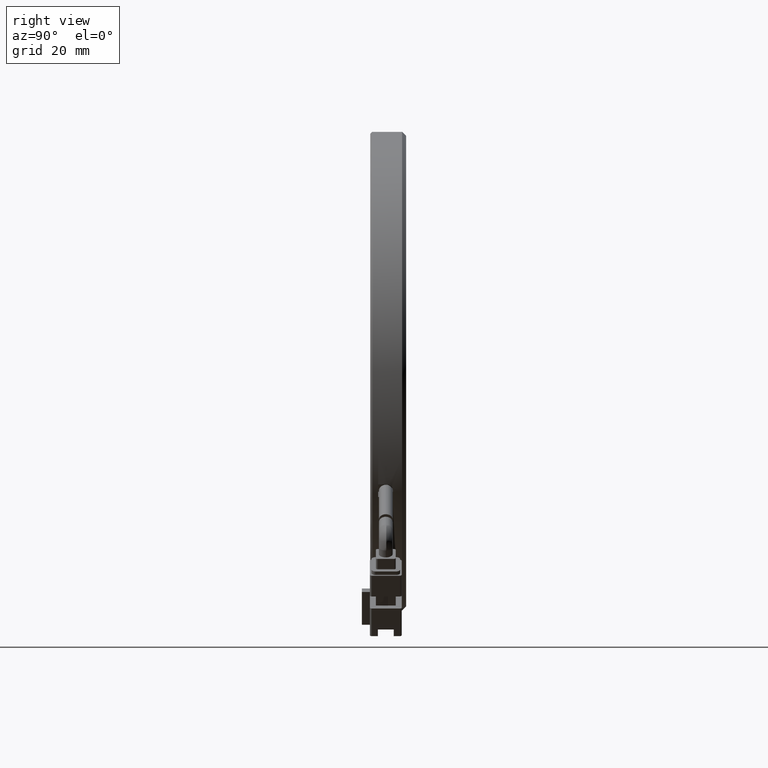
[diagram: clean part render]
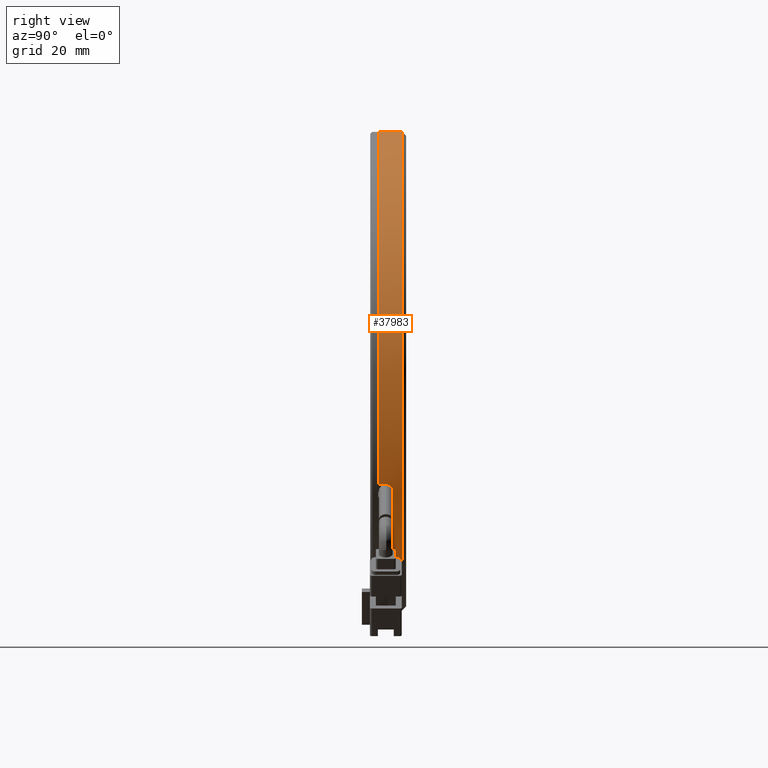
[diagram: same view with one face highlighted and labeled with its STEP entity id]
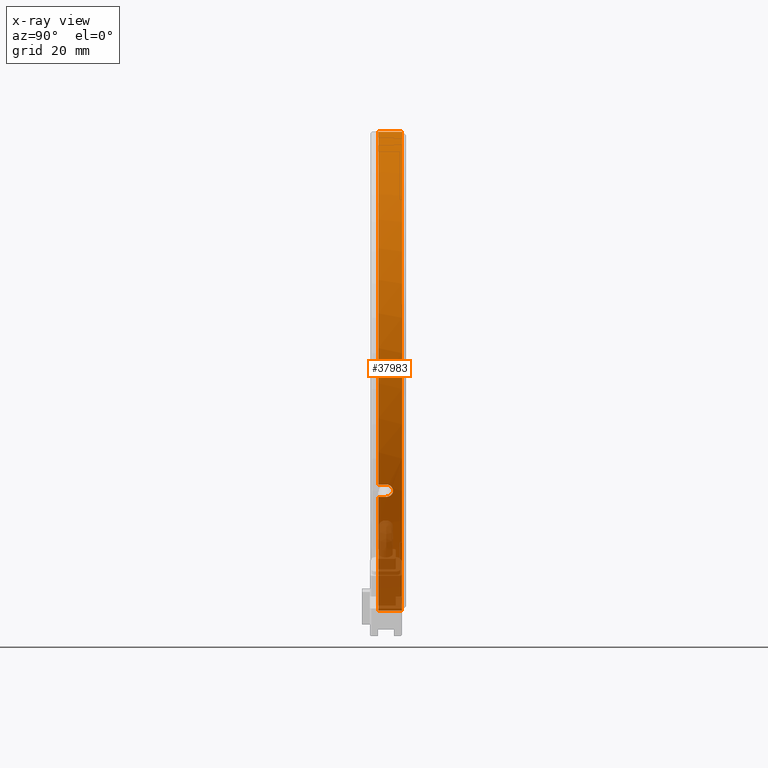
[diagram: x-ray of the same camera — body ghosted, the highlighted face saturated]
A machine part, right view. The second image highlights one B-rep face of the part: STEP entity #37983.
The next image is the same camera in x-ray: the body ghosted, the highlighted face saturated — about 16% of this face is hidden behind the body in this view.
In plain terms, the highlighted cylindrical surface (partial cylindrical patch) has radius 60 mm, axis along (0, 1, -0).
Its self-contained STEP definition (entity closure, byte-faithful):
#72 = CARTESIAN_POINT ( 'NONE',  ( 107.6669906044507000, 23.95880466372662800, -31.26473926482467600 ) ) ;
#163 = CARTESIAN_POINT ( 'NONE',  ( 107.5820754639397700, 23.68334906548545900, -31.40378674532980700 ) ) ;
#218 = CARTESIAN_POINT ( 'NONE',  ( 107.6107933539878000, 23.79366252378922700, -31.35694148969325600 ) ) ;
#296 = CARTESIAN_POINT ( 'NONE',  ( 107.5166247765962700, 23.36610255110186800, -31.51004566347933500 ) ) ;
#965 = CARTESIAN_POINT ( 'NONE',  ( 107.6879046395145400, 24.01376433703568100, -31.23035833033889800 ) ) ;
#1115 = CARTESIAN_POINT ( 'NONE',  ( 107.5003506791527700, 23.17424804708871700, -31.53560558771098600 ) ) ;
#1192 = CARTESIAN_POINT ( 'NONE',  ( 107.4949962863105200, 23.01888387335434800, -31.54436103309216900 ) ) ;
#1261 = ORIENTED_EDGE ( 'NONE', *, *, #3853, .F. ) ;
#1821 = CARTESIAN_POINT ( 'NONE',  ( 109.2943813872259500, 21.01889671361520200, -28.42765123433125800 ) ) ;
#2035 = CARTESIAN_POINT ( 'NONE',  ( 56.45624510954999000, 21.01889671361172800, 60.00000000000000000 ) ) ;
#2414 = VERTEX_POINT ( 'NONE', #11195 ) ;
#3571 = VERTEX_POINT ( 'NONE', #45705 ) ;
#3853 = EDGE_CURVE ( 'NONE', #42153, #21032, #53825, .T. ) ;
#3948 = EDGE_CURVE ( 'NONE', #62863, #42153, #36689, .T. ) ;
#4408 = EDGE_CURVE ( 'NONE', #2414, #3571, #55476, .T. ) ;
#4454 = DIRECTION ( 'NONE',  ( 0.0000000000000000000, 1.000000000000000000, -0.0000000000000000000 ) ) ;
#6270 = CARTESIAN_POINT ( 'NONE',  ( 108.5031715242172700, 24.71889982597300800, -29.85207985124088000 ) ) ;
#6855 = CARTESIAN_POINT ( 'NONE',  ( 108.3323343531352900, 24.71889360071834900, -30.14797695285378200 ) ) ;
#7742 = EDGE_CURVE ( 'NONE', #61824, #23388, #13274, .T. ) ;
#8142 = VECTOR ( 'NONE', #32685, 1000.000000000000000 ) ;
#8259 = ORIENTED_EDGE ( 'NONE', *, *, #7742, .F. ) ;
#11195 = CARTESIAN_POINT ( 'NONE',  ( 107.4949962863105200, 23.01888387335434800, -31.54436103309216900 ) ) ;
#13274 = CIRCLE ( 'NONE', #34520, 60.00000000000000000 ) ;
#15779 = CARTESIAN_POINT ( 'NONE',  ( 107.4943813872370300, 21.01889671361172800, -31.54534268795070100 ) ) ;
#15897 = VECTOR ( 'NONE', #28803, 1000.000000000000000 ) ;
#16218 = CARTESIAN_POINT ( 'NONE',  ( 108.0125124885094600, 24.54664827108939900, -30.69129563125502400 ) ) ;
#18893 = VECTOR ( 'NONE', #26004, 1000.000000000000000 ) ;
#19416 = CARTESIAN_POINT ( 'NONE',  ( 109.2943813872259500, 21.01889671361520200, -28.42765123433125800 ) ) ;
#20260 = CARTESIAN_POINT ( 'NONE',  ( 56.45624510954999000, 27.01889671361802000, 0.0000000000000000000 ) ) ;
#21032 = VERTEX_POINT ( 'NONE', #62453 ) ;
#21492 = CIRCLE ( 'NONE', #49466, 60.00000000000000000 ) ;
#21591 = CARTESIAN_POINT ( 'NONE',  ( 109.2937288828685500, 23.01888405545264500, -28.42887868770792200 ) ) ;
#21682 = ORIENTED_EDGE ( 'NONE', *, *, #4408, .F. ) ;
#22340 = DIRECTION ( 'NONE',  ( 0.0000000000000000000, 0.0000000000000000000, 1.000000000000000000 ) ) ;
#22412 = DIRECTION ( 'NONE',  ( -0.0000000000000000000, -1.000000000000000000, 0.0000000000000000000 ) ) ;
#22542 = CARTESIAN_POINT ( 'NONE',  ( 56.45624510954999000, 21.01889671361172800, 0.0000000000000000000 ) ) ;
#23266 = CARTESIAN_POINT ( 'NONE',  ( 108.2311034291219400, 24.69475282451764300, -30.32118793655982700 ) ) ;
#23388 = VERTEX_POINT ( 'NONE', #15779 ) ;
#23408 = AXIS2_PLACEMENT_3D ( 'NONE', #64005, #4454, #34363 ) ;
#23585 = CARTESIAN_POINT ( 'NONE',  ( 107.4943813872339100, 21.01889671361172800, -31.54534268795575300 ) ) ;
#23784 = ORIENTED_EDGE ( 'NONE', *, *, #3948, .F. ) ;
#24101 = ORIENTED_EDGE ( 'NONE', *, *, #61492, .F. ) ;
#25142 = DIRECTION ( 'NONE',  ( 0.0000000000000000000, 0.0000000000000000000, -1.000000000000000000 ) ) ;
#25781 = CARTESIAN_POINT ( 'NONE',  ( 56.45624510954999700, 21.01889671361172800, -60.00000000000000000 ) ) ;
#26004 = DIRECTION ( 'NONE',  ( 0.0000000000000000000, 1.000000000000000000, -0.0000000000000000000 ) ) ;
#27737 = VERTEX_POINT ( 'NONE', #46214 ) ;
#28803 = DIRECTION ( 'NONE',  ( 0.0000000000000000000, 1.000000000000000000, -0.0000000000000000000 ) ) ;
#28861 = CARTESIAN_POINT ( 'NONE',  ( 56.45624510954999000, 21.01889671361172800, 60.00000000000000000 ) ) ;
#29456 = CARTESIAN_POINT ( 'NONE',  ( 56.45624510954999000, 21.01889671361172800, 0.0000000000000000000 ) ) ;
#31139 = FACE_OUTER_BOUND ( 'NONE', #47001, .T. ) ;
#31475 = CARTESIAN_POINT ( 'NONE',  ( 109.2943934254215900, 21.68556338027922300, -28.42765818458593300 ) ) ;
#31709 = CARTESIAN_POINT ( 'NONE',  ( 107.8949260850538100, 24.42144092546307000, -30.88858445563404200 ) ) ;
#31971 = LINE ( 'NONE', #25781, #18893 ) ;
#32685 = DIRECTION ( 'NONE',  ( -0.0000000000000000000, -1.000000000000000000, 0.0000000000000000000 ) ) ;
#33015 = ORIENTED_EDGE ( 'NONE', *, *, #42077, .F. ) ;
#34363 = DIRECTION ( 'NONE',  ( 0.0000000000000000000, 0.0000000000000000000, 1.000000000000000000 ) ) ;
#34411 = DIRECTION ( 'NONE',  ( 0.0000000000000000000, 0.0000000000000000000, 1.000000000000000000 ) ) ;
#34520 = AXIS2_PLACEMENT_3D ( 'NONE', #29456, #64066, #34411 ) ;
#34557 = CARTESIAN_POINT ( 'NONE',  ( 107.7748428832660300, 24.20205294627882600, -31.08700975351547800 ) ) ;
#35921 = CARTESIAN_POINT ( 'NONE',  ( 107.7606972846711200, 24.17462165868801800, -31.11036769098585400 ) ) ;
#35988 = LINE ( 'NONE', #23585, #8142 ) ;
#36689 = CIRCLE ( 'NONE', #37061, 60.00000000000000000 ) ;
#36895 = CARTESIAN_POINT ( 'NONE',  ( 108.6025386758481800, 24.69477643633649300, -29.67784568662406400 ) ) ;
#37061 = AXIS2_PLACEMENT_3D ( 'NONE', #22542, #22412, #22340 ) ;
#37983 = ADVANCED_FACE ( 'NONE', ( #31139 ), #51313, .T. ) ;
#39957 = B_SPLINE_CURVE_WITH_KNOTS ( 'NONE', 3,
 ( #21591, #51212, #31475, #1821 ),
 .UNSPECIFIED., .F., .F.,
 ( 4, 4 ),
 ( 0.0000000000000000000, 1.000000000000000000 ),
 .UNSPECIFIED. ) ;
#42077 = EDGE_CURVE ( 'NONE', #3571, #62863, #39957, .T. ) ;
#42153 = VERTEX_POINT ( 'NONE', #2035 ) ;
#44814 = EDGE_CURVE ( 'NONE', #61824, #27737, #31971, .T. ) ;
#45705 = CARTESIAN_POINT ( 'NONE',  ( 109.2937288828685500, 23.01888405545264500, -28.42887868770792200 ) ) ;
#46214 = CARTESIAN_POINT ( 'NONE',  ( 56.45624510954999000, 27.01889671361802000, -60.00000000000085300 ) ) ;
#46584 = ORIENTED_EDGE ( 'NONE', *, *, #44814, .T. ) ;
#47001 = EDGE_LOOP ( 'NONE', ( #8259, #46584, #24101, #1261, #23784, #33015, #21682, #52675 ) ) ;
#49466 = AXIS2_PLACEMENT_3D ( 'NONE', #20260, #54800, #25142 ) ;
#49821 = EDGE_CURVE ( 'NONE', #2414, #23388, #35988, .T. ) ;
#50670 = CARTESIAN_POINT ( 'NONE',  ( 107.7350372713229200, 24.12167807966546100, -31.15270527277187900 ) ) ;
#51212 = CARTESIAN_POINT ( 'NONE',  ( 109.2944054636095800, 22.35223004694671500, -28.42766513483700700 ) ) ;
#51313 = CYLINDRICAL_SURFACE ( 'NONE', #23408, 60.00000000000000000 ) ;
#51532 = CARTESIAN_POINT ( 'NONE',  ( 109.2937288828685500, 23.01888405545264500, -28.42887868770792200 ) ) ;
#52675 = ORIENTED_EDGE ( 'NONE', *, *, #49821, .T. ) ;
#52867 = CARTESIAN_POINT ( 'NONE',  ( 109.2889338473640900, 23.17422294855794000, -28.43768801162763500 ) ) ;
#53825 = LINE ( 'NONE', #28861, #15897 ) ;
#54299 = CARTESIAN_POINT ( 'NONE',  ( 109.2749392819846400, 23.36606992867571700, -28.46455475174066400 ) ) ;
#54503 = CARTESIAN_POINT ( 'NONE',  ( 109.1958759956339000, 23.78908320515649400, -28.61097023484240200 ) ) ;
#54800 = DIRECTION ( 'NONE',  ( 0.0000000000000000000, 1.000000000000000000, 0.0000000000000000000 ) ) ;
#55476 = B_SPLINE_CURVE_WITH_KNOTS ( 'NONE', 3,
 ( #1192, #1115, #296, #163, #218, #72, #965, #63347, #50670, #35921, #34557, #31709, #16218, #23266, #6855, #6270, #36895, #63204, #62775, #62207, #61999, #61866, #61600, #60992, #59509, #56402, #54503, #54299, #52867, #51532 ),
 .UNSPECIFIED., .F., .F.,
 ( 4, 2, 2, 2, 2, 2, 2, 2, 2, 2, 2, 2, 2, 2, 4 ),
 ( 0.0000000000000000000, 0.1250000000000116600, 0.1875000000000191000, 0.2187500000000229800, 0.2343750000000253700, 0.2500000000000277600, 0.3750000000000227600, 0.5000000000000177600, 0.6250000000000127700, 0.6875000000000102100, 0.7187500000000088800, 0.7343750000000086600, 0.7500000000000084400, 0.8750000000000042200, 1.000000000000000000 ),
 .UNSPECIFIED. ) ;
#56402 = CARTESIAN_POINT ( 'NONE',  ( 109.1299295121298500, 24.02104908705103600, -28.73203930713465200 ) ) ;
#59509 = CARTESIAN_POINT ( 'NONE',  ( 109.0121585626487900, 24.25214116653174300, -28.94609995998086300 ) ) ;
#60992 = CARTESIAN_POINT ( 'NONE',  ( 109.0001816388508600, 24.27415653597795500, -28.96781768859114000 ) ) ;
#61492 = EDGE_CURVE ( 'NONE', #21032, #27737, #21492, .T. ) ;
#61600 = CARTESIAN_POINT ( 'NONE',  ( 108.9745723683074500, 24.31868786522907700, -29.01416716586086200 ) ) ;
#61824 = VERTEX_POINT ( 'NONE', #63569 ) ;
#61866 = CARTESIAN_POINT ( 'NONE',  ( 108.9616015127010400, 24.33990591241205000, -29.03759658798803400 ) ) ;
#61999 = CARTESIAN_POINT ( 'NONE',  ( 108.9223255102946700, 24.40049106353628300, -29.10841468755369400 ) ) ;
#62207 = CARTESIAN_POINT ( 'NONE',  ( 108.8956600383108100, 24.43678434204864700, -29.15632781080002200 ) ) ;
#62453 = CARTESIAN_POINT ( 'NONE',  ( 56.45624510954999700, 27.01889671361802000, 60.00000000000085300 ) ) ;
#62775 = CARTESIAN_POINT ( 'NONE',  ( 108.8151912532197500, 24.53416590338430200, -29.30048672501694200 ) ) ;
#62863 = VERTEX_POINT ( 'NONE', #19416 ) ;
#63204 = CARTESIAN_POINT ( 'NONE',  ( 108.7609644062288900, 24.58371660644635900, -29.39706747532097000 ) ) ;
#63347 = CARTESIAN_POINT ( 'NONE',  ( 107.7228125748161200, 24.09486823324868600, -31.17285858922836500 ) ) ;
#63569 = CARTESIAN_POINT ( 'NONE',  ( 56.45624510954999700, 21.01889671361172800, -60.00000000000000000 ) ) ;
#64005 = CARTESIAN_POINT ( 'NONE',  ( 56.45624510954999000, 21.01889671361172800, 0.0000000000000000000 ) ) ;
#64066 = DIRECTION ( 'NONE',  ( -0.0000000000000000000, -1.000000000000000000, 0.0000000000000000000 ) ) ;